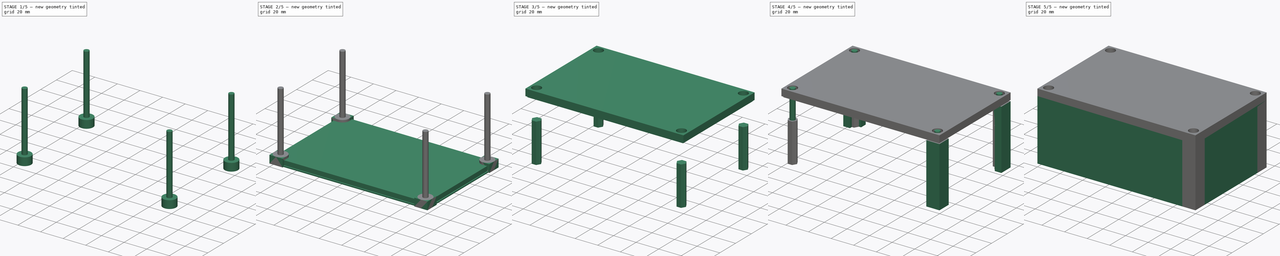
[diagram: build sequence overview — one tinted view per stage of 5, left to right]
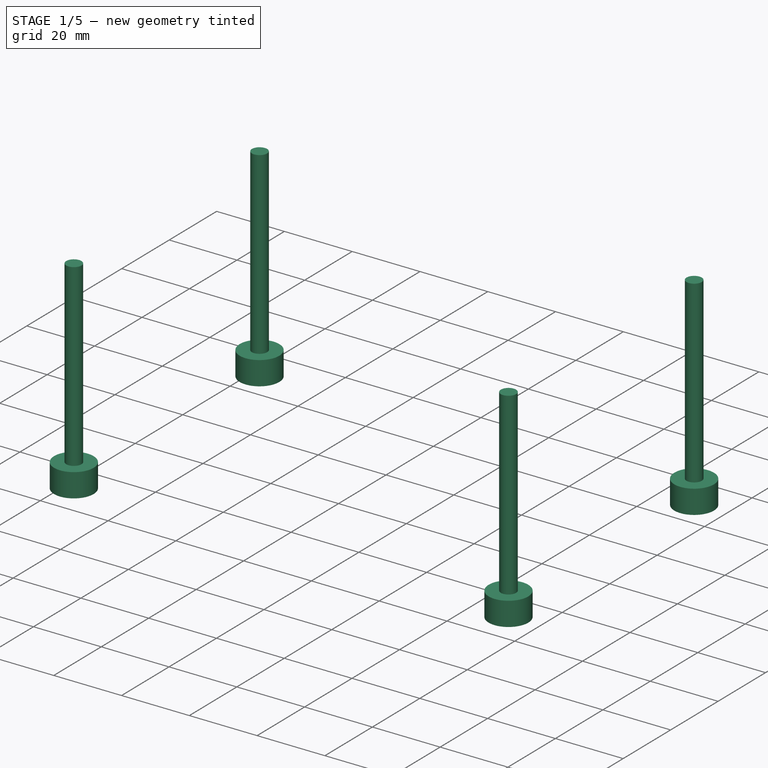
[diagram: stage 1 of 5 — iso view after this stage's code; geometry added in this stage tinted green]
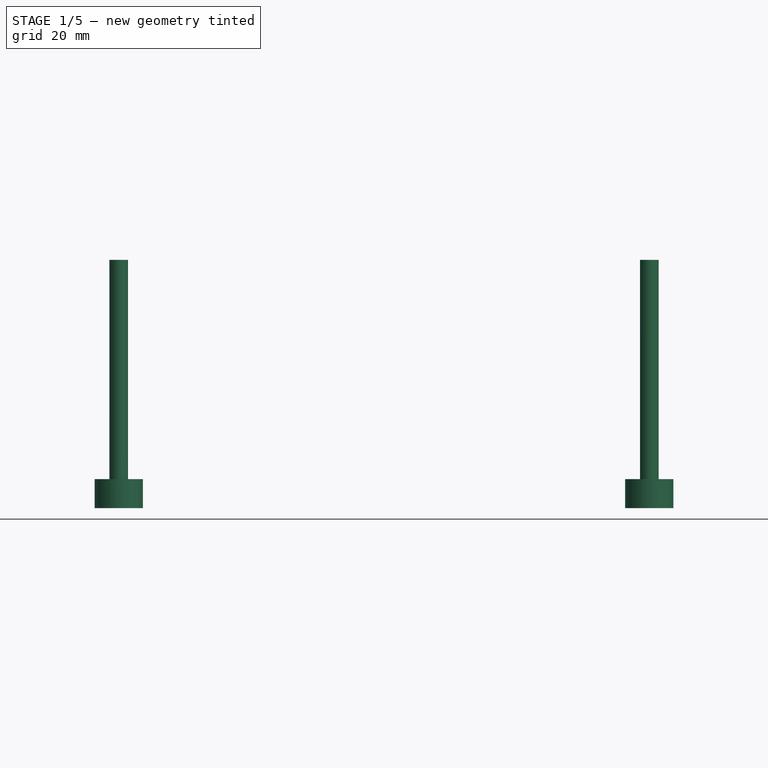
[diagram: stage 1 of 5 — front view after this stage's code; geometry added in this stage tinted green]
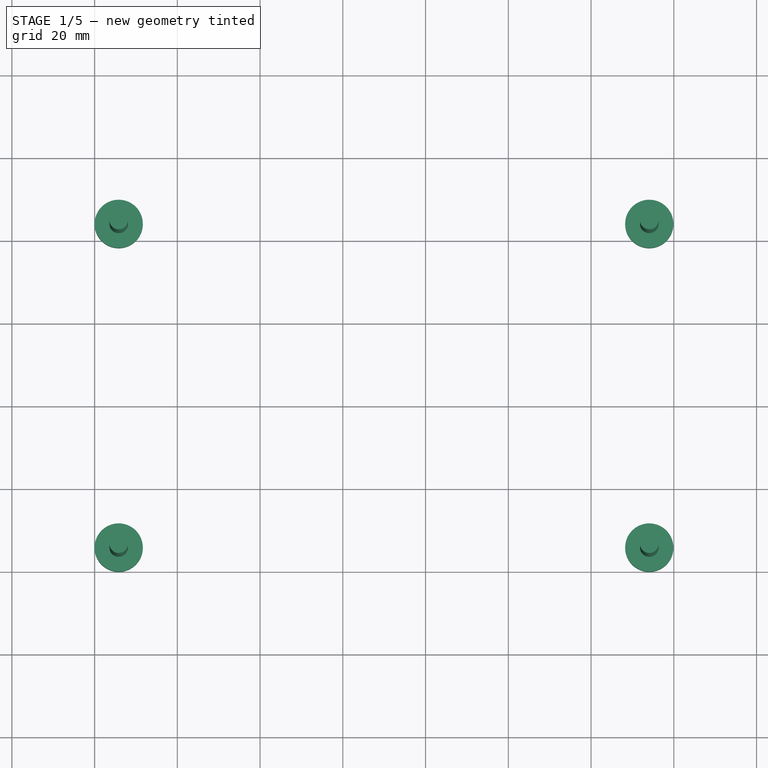
[diagram: stage 1 of 5 — top view after this stage's code; geometry added in this stage tinted green]
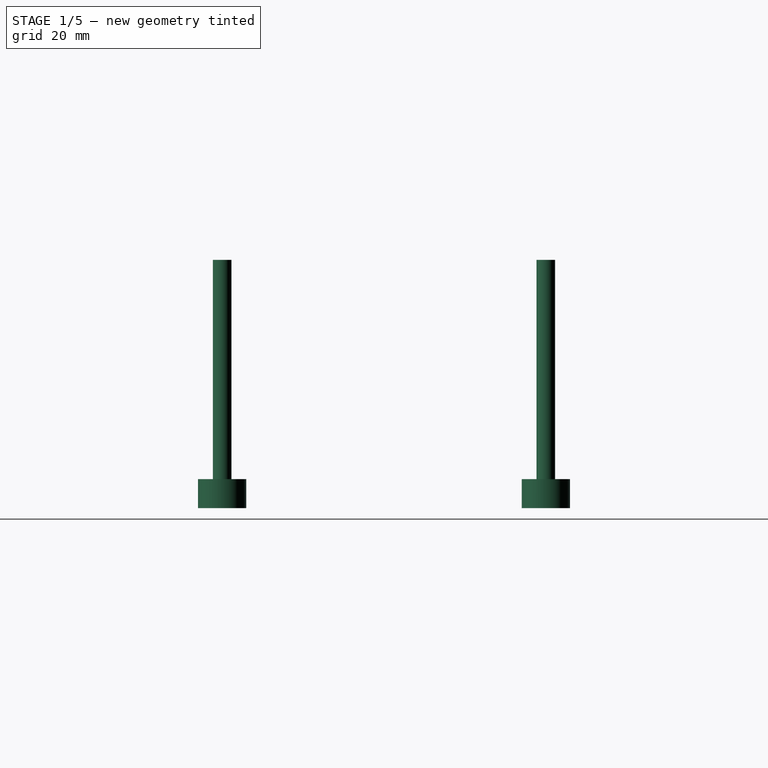
[diagram: stage 1 of 5 — right view after this stage's code; geometry added in this stage tinted green]
FCSTD DOCUMENT  (FreeCAD 1.0R1.0.0)
Label: GenericBox01
License: All rights reserved
LicenseURL: http://en.wikipedia.org/wiki/All_rights_reserved
objects: Part::Box×24, Part::Cylinder×20, Part::Cut×15, Part::MultiFuse×11, Sketcher::SketchObject×4, Part::Extrusion×4, Spreadsheet::Sheet×1
note: 82 computed .brp shape members not serialized (recipe doc carries the construction recipe); baked Part::Feature solids carry a one-line shape summary decoded from their .brp

FEATURE [Part::Cylinder] Cylinder008
  Angle = 360
  AttacherType = Attacher::AttachEngine3D
  FirstAngle = 0
  Height = 7
  Placement = pos=(5.83,5.83,0) rot=(0,0,1;0rad)
  Radius = 5.83
  SecondAngle = 0
  expr: .Placement.Base.x = <<GenericScrewedUtilityBox>>.wall_width + <<GenericScrewedUtilityBox>>.m4_od / 2
  expr: .Placement.Base.y = <<GenericScrewedUtilityBox>>.wall_width + <<GenericScrewedUtilityBox>>.m4_od / 2
  expr: Height = <<GenericScrewedUtilityBox>>.upper_split_height + <<GenericScrewedUtilityBox>>.overlap_region
  expr: Radius = <<GenericScrewedUtilityBox>>.m4_od / 2 + <<GenericScrewedUtilityBox>>.wall_width
FEATURE [Part::Cylinder] Cylinder009
  Angle = 360
  AttacherType = Attacher::AttachEngine3D
  FirstAngle = 0
  Height = 7
  Placement = pos=(134.075,5.83,0) rot=(0,0,1;0rad)
  Radius = 5.83
  SecondAngle = 0
  expr: .Placement.Base.x = <<GenericScrewedUtilityBox>>.outer_width - <<GenericScrewedUtilityBox>>.wall_width - <<GenericScrewedUtilityBox>>.m4_od / 2
  expr: .Placement.Base.y = <<GenericScrewedUtilityBox>>.wall_width + <<GenericScrewedUtilityBox>>.m4_od / 2
  expr: Height = <<GenericScrewedUtilityBox>>.upper_split_height + <<GenericScrewedUtilityBox>>.overlap_region
  expr: Radius = <<GenericScrewedUtilityBox>>.m4_od / 2 + <<GenericScrewedUtilityBox>>.wall_width
FEATURE [Part::Cylinder] Cylinder010
  Angle = 360
  AttacherType = Attacher::AttachEngine3D
  FirstAngle = 0
  Height = 7
  Placement = pos=(5.83,84.0749,0) rot=(0,0,1;0rad)
  Radius = 5.83
  SecondAngle = 0
  expr: .Placement.Base.x = <<GenericScrewedUtilityBox>>.wall_width + <<GenericScrewedUtilityBox>>.m4_od / 2
  expr: .Placement.Base.y = <<GenericScrewedUtilityBox>>.outer_length - <<GenericScrewedUtilityBox>>.wall_width - <<GenericScrewedUtilityBox>>.m4_od / 2
  expr: Height = <<GenericScrewedUtilityBox>>.upper_split_height + <<GenericScrewedUtilityBox>>.overlap_region
  expr: Radius = <<GenericScrewedUtilityBox>>.m4_od / 2 + <<GenericScrewedUtilityBox>>.wall_width
FEATURE [Part::Cylinder] Cylinder011
  Angle = 360
  AttacherType = Attacher::AttachEngine3D
  FirstAngle = 0
  Height = 7
  Placement = pos=(134.075,84.0749,0) rot=(0,0,1;0rad)
  Radius = 5.83
  SecondAngle = 0
  expr: .Placement.Base.x = <<GenericScrewedUtilityBox>>.outer_width - <<GenericScrewedUtilityBox>>.wall_width - <<GenericScrewedUtilityBox>>.m4_od / 2
  expr: .Placement.Base.y = <<GenericScrewedUtilityBox>>.outer_length - <<GenericScrewedUtilityBox>>.wall_width - <<GenericScrewedUtilityBox>>.m4_od / 2
  expr: Height = <<GenericScrewedUtilityBox>>.upper_split_height + <<GenericScrewedUtilityBox>>.overlap_region
  expr: Radius = <<GenericScrewedUtilityBox>>.m4_od / 2 + <<GenericScrewedUtilityBox>>.wall_width
FEATURE [Part::Cylinder] Cylinder012
  Angle = 360
  AttacherType = Attacher::AttachEngine3D
  FirstAngle = 0
  Height = 60
  Placement = pos=(5.83,5.83,0) rot=(0,0,1;0rad)
  Radius = 2.25
  SecondAngle = 0
  expr: .Placement.Base.x = <<GenericScrewedUtilityBox>>.wall_width + <<GenericScrewedUtilityBox>>.m4_od / 2
  expr: .Placement.Base.y = <<GenericScrewedUtilityBox>>.wall_width + <<GenericScrewedUtilityBox>>.m4_od / 2
  expr: Height = <<GenericScrewedUtilityBox>>.outer_height
  expr: Radius = <<GenericScrewedUtilityBox>>.m4_throughhole / 2
FEATURE [Part::Cylinder] Cylinder013
  Angle = 360
  AttacherType = Attacher::AttachEngine3D
  FirstAngle = 0
  Height = 60
  Placement = pos=(134.075,5.83,0) rot=(0,0,1;0rad)
  Radius = 2.25
  SecondAngle = 0
  expr: .Placement.Base.x = <<GenericScrewedUtilityBox>>.outer_width - <<GenericScrewedUtilityBox>>.wall_width - <<GenericScrewedUtilityBox>>.m4_od / 2
  expr: .Placement.Base.y = <<GenericScrewedUtilityBox>>.wall_width + <<GenericScrewedUtilityBox>>.m4_od / 2
  expr: Height = <<GenericScrewedUtilityBox>>.outer_height
  expr: Radius = <<GenericScrewedUtilityBox>>.m4_throughhole / 2
FEATURE [Part::Cylinder] Cylinder014
  Angle = 360
  AttacherType = Attacher::AttachEngine3D
  FirstAngle = 0
  Height = 60
  Placement = pos=(5.83,84.0749,0) rot=(0,0,1;0rad)
  Radius = 2.25
  SecondAngle = 0
  expr: .Placement.Base.x = <<GenericScrewedUtilityBox>>.wall_width + <<GenericScrewedUtilityBox>>.m4_od / 2
  expr: .Placement.Base.y = <<GenericScrewedUtilityBox>>.outer_length - <<GenericScrewedUtilityBox>>.wall_width - <<GenericScrewedUtilityBox>>.m4_od / 2
  expr: Height = <<GenericScrewedUtilityBox>>.outer_height
  expr: Radius = <<GenericScrewedUtilityBox>>.m4_throughhole / 2
FEATURE [Part::Cylinder] Cylinder015
  Angle = 360
  AttacherType = Attacher::AttachEngine3D
  FirstAngle = 0
  Height = 60
  Placement = pos=(134.075,84.0749,0) rot=(0,0,1;0rad)
  Radius = 2.25
  SecondAngle = 0
  expr: .Placement.Base.x = <<GenericScrewedUtilityBox>>.outer_width - <<GenericScrewedUtilityBox>>.wall_width - <<GenericScrewedUtilityBox>>.m4_od / 2
  expr: .Placement.Base.y = <<GenericScrewedUtilityBox>>.outer_length - <<GenericScrewedUtilityBox>>.wall_width - <<GenericScrewedUtilityBox>>.m4_od / 2
  expr: Height = <<GenericScrewedUtilityBox>>.outer_height
  expr: Radius = <<GenericScrewedUtilityBox>>.m4_throughhole / 2
FEATURE [Part::MultiFuse] Fusion008  label="M4Through002"
  Shapes = -> [Cylinder015,Cylinder012,Cylinder013,Cylinder014]
FEATURE [Part::Cylinder] Cylinder016
  Angle = 360
  AttacherType = Attacher::AttachEngine3D
  FirstAngle = 0
  Height = 4.3
  Placement = pos=(5.83,5.83,0) rot=(0,0,1;0rad)
  Radius = 4
  SecondAngle = 0
  expr: .Placement.Base.x = <<GenericScrewedUtilityBox>>.wall_width + <<GenericScrewedUtilityBox>>.m4_od / 2
  expr: .Placement.Base.y = <<GenericScrewedUtilityBox>>.wall_width + <<GenericScrewedUtilityBox>>.m4_od / 2
  expr: Height = <<GenericScrewedUtilityBox>>.m4_head_height
  expr: Radius = <<GenericScrewedUtilityBox>>.m4_head_dia / 2
FEATURE [Part::Cylinder] Cylinder017
  Angle = 360
  AttacherType = Attacher::AttachEngine3D
  FirstAngle = 0
  Height = 4.3
  Placement = pos=(134.075,5.83,0) rot=(0,0,1;0rad)
  Radius = 4
  SecondAngle = 0
  expr: .Placement.Base.x = <<GenericScrewedUtilityBox>>.outer_width - <<GenericScrewedUtilityBox>>.wall_width - <<GenericScrewedUtilityBox>>.m4_od / 2
  expr: .Placement.Base.y = <<GenericScrewedUtilityBox>>.wall_width + <<GenericScrewedUtilityBox>>.m4_od / 2
  expr: Height = <<GenericScrewedUtilityBox>>.m4_head_height
  expr: Radius = <<GenericScrewedUtilityBox>>.m4_head_dia / 2
FEATURE [Part::Cylinder] Cylinder018
  Angle = 360
  AttacherType = Attacher::AttachEngine3D
  FirstAngle = 0
  Height = 4.3
  Placement = pos=(5.83,84.0749,0) rot=(0,0,1;0rad)
  Radius = 4
  SecondAngle = 0
  expr: .Placement.Base.x = <<GenericScrewedUtilityBox>>.wall_width + <<GenericScrewedUtilityBox>>.m4_od / 2
  expr: .Placement.Base.y = <<GenericScrewedUtilityBox>>.outer_length - <<GenericScrewedUtilityBox>>.wall_width - <<GenericScrewedUtilityBox>>.m4_od / 2
  expr: Height = <<GenericScrewedUtilityBox>>.m4_head_height
  expr: Radius = <<GenericScrewedUtilityBox>>.m4_head_dia / 2
FEATURE [Part::Cylinder] Cylinder019
  Angle = 360
  AttacherType = Attacher::AttachEngine3D
  FirstAngle = 0
  Height = 4.3
  Placement = pos=(134.075,84.0749,0) rot=(0,0,1;0rad)
  Radius = 4
  SecondAngle = 0
  expr: .Placement.Base.x = <<GenericScrewedUtilityBox>>.outer_width - <<GenericScrewedUtilityBox>>.wall_width - <<GenericScrewedUtilityBox>>.m4_od / 2
  expr: .Placement.Base.y = <<GenericScrewedUtilityBox>>.outer_length - <<GenericScrewedUtilityBox>>.wall_width - <<GenericScrewedUtilityBox>>.m4_od / 2
  expr: Height = <<GenericScrewedUtilityBox>>.m4_head_height
  expr: Radius = <<GenericScrewedUtilityBox>>.m4_head_dia / 2
FEATURE [Part::MultiFuse] Fusion009  label="M4Heads"
  Placement = pos=(0,0,2.7) rot=(0,0,1;0rad)
  Shapes = -> [Cylinder019,Cylinder016,Cylinder017,Cylinder018]
  expr: .Placement.Base.z = <<GenericScrewedUtilityBox>>.upper_split_height - <<GenericScrewedUtilityBox>>.m4_head_height + <<GenericScrewedUtilityBox>>.overlap_region
FEATURE [Part::MultiFuse] Fusion010
  Shapes = -> [Fusion009,Fusion008]
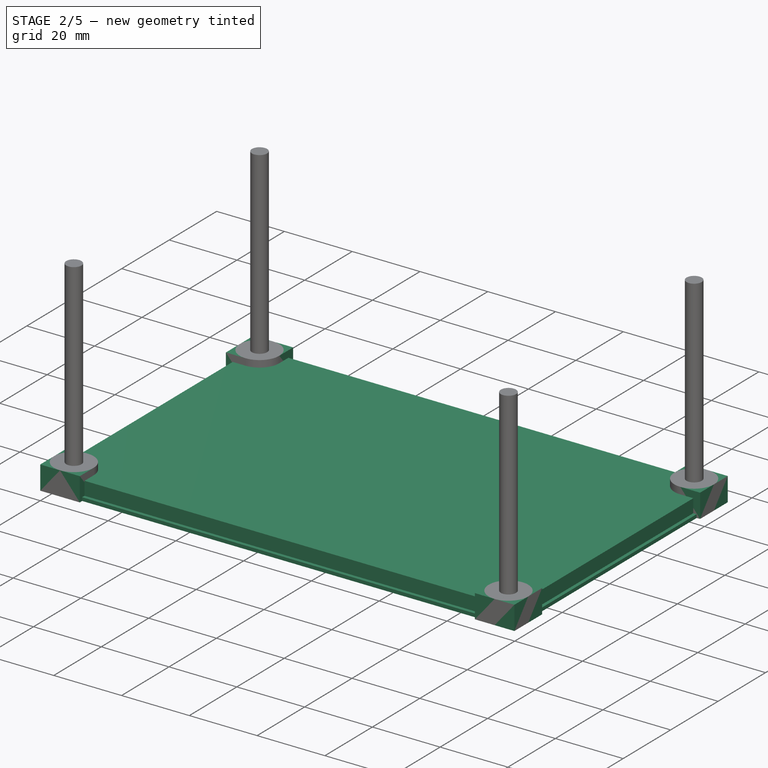
[diagram: stage 2 of 5 — iso view after this stage's code; geometry added in this stage tinted green]
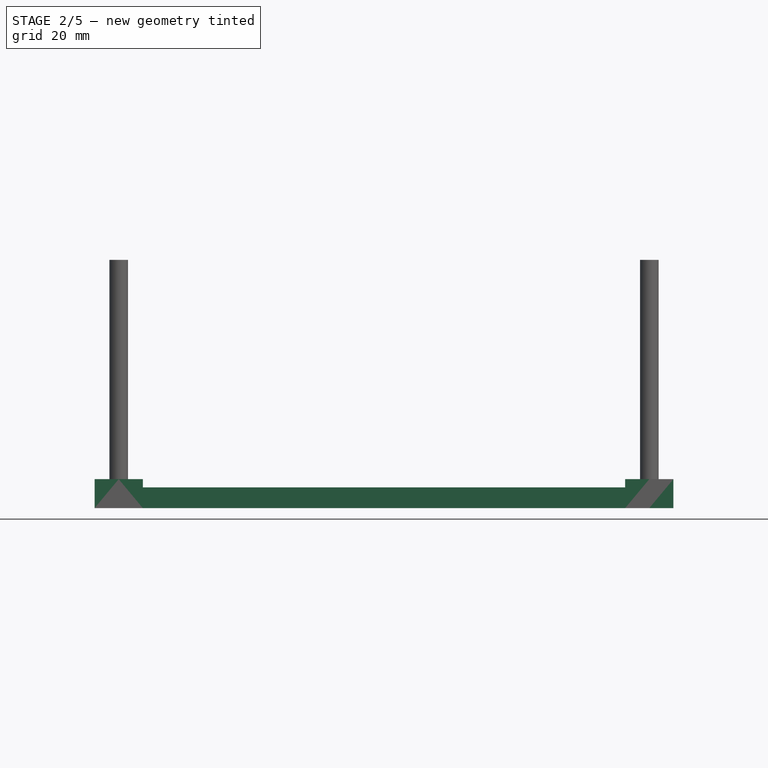
[diagram: stage 2 of 5 — front view after this stage's code; geometry added in this stage tinted green]
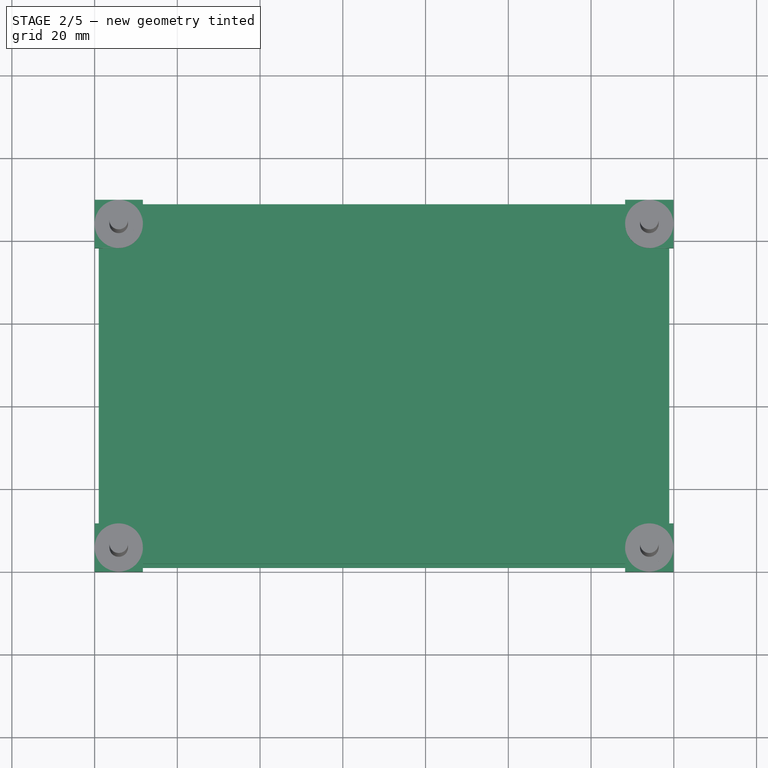
[diagram: stage 2 of 5 — top view after this stage's code; geometry added in this stage tinted green]
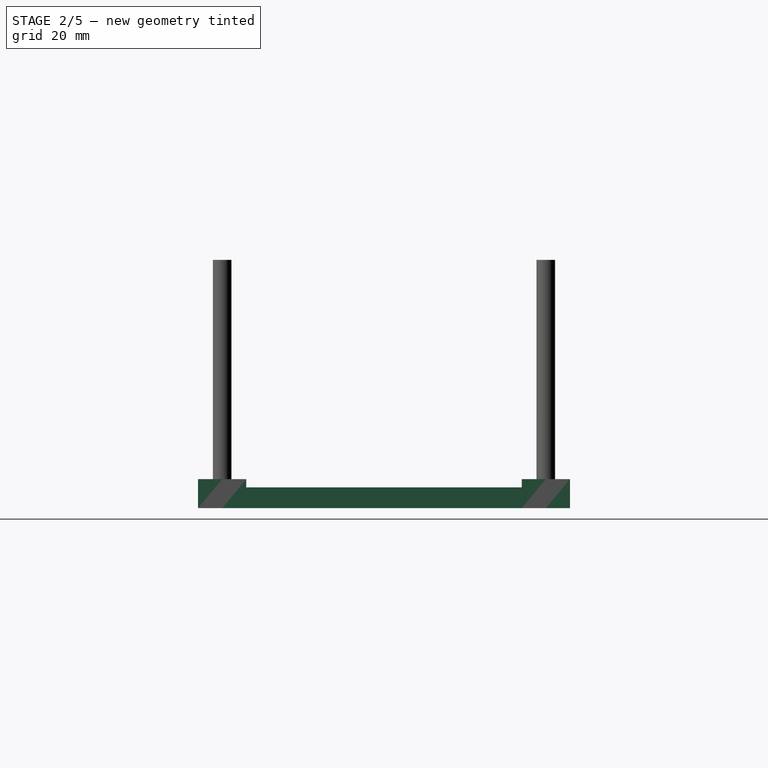
[diagram: stage 2 of 5 — right view after this stage's code; geometry added in this stage tinted green]
FEATURE [Part::Box] Box012  label="Cube009"
  AttacherType = Attacher::AttachEngine3D
  Height = 1
  Length = 137.905
  Placement = pos=(1,1,0) rot=(0,0,1;0rad)
  Width = 87.9049
  expr: .Placement.Base.x = <<GenericScrewedUtilityBox>>.wall_width / 2
  expr: .Placement.Base.y = <<GenericScrewedUtilityBox>>.wall_width / 2
  expr: Height = <<GenericScrewedUtilityBox>>.overlap_region
  expr: Length = <<GenericScrewedUtilityBox>>.outer_width - <<GenericScrewedUtilityBox>>.wall_width
  expr: Width = <<GenericScrewedUtilityBox>>.outer_length - <<GenericScrewedUtilityBox>>.wall_width
FEATURE [Part::Box] Box013  label="InnerArea002"
  AttacherType = Attacher::AttachEngine3D
  Height = 5
  Length = 135.905
  Placement = pos=(2,2,0) rot=(0,0,1;0rad)
  Width = 85.9049
  expr: .Placement.Base.x = <<GenericScrewedUtilityBox>>.wall_width
  expr: .Placement.Base.y = <<GenericScrewedUtilityBox>>.wall_width
  expr: Height = <<GenericScrewedUtilityBox>>.upper_split_height + <<GenericScrewedUtilityBox>>.overlap_region - <<GenericScrewedUtilityBox>>.wall_width
  expr: Length = <<GenericScrewedUtilityBox>>.outer_width - 2 * <<GenericScrewedUtilityBox>>.wall_width
  expr: Width = <<GenericScrewedUtilityBox>>.outer_length - 2 * <<GenericScrewedUtilityBox>>.wall_width
FEATURE [Part::Box] Box014  label="Cube010"
  AttacherType = Attacher::AttachEngine3D
  Height = 7
  Length = 11.66
  Width = 11.66
  expr: Height = <<GenericScrewedUtilityBox>>.upper_split_height + <<GenericScrewedUtilityBox>>.overlap_region
  expr: Length = <<GenericScrewedUtilityBox>>.m4_od + 2 * <<GenericScrewedUtilityBox>>.wall_width
  expr: Width = <<GenericScrewedUtilityBox>>.m4_od + 2 * <<GenericScrewedUtilityBox>>.wall_width
FEATURE [Part::Box] Box015  label="Cube011"
  AttacherType = Attacher::AttachEngine3D
  Height = 7
  Length = 5.83
  Placement = pos=(5.83,5.83,0) rot=(0,0,1;0rad)
  Width = 5.83
  expr: .Placement.Base.x = (<<GenericScrewedUtilityBox>>.m4_od + 2 * <<GenericScrewedUtilityBox>>.wall_width) / 2
  expr: .Placement.Base.y = (<<GenericScrewedUtilityBox>>.m4_od + 2 * <<GenericScrewedUtilityBox>>.wall_width) / 2
  expr: Height = <<GenericScrewedUtilityBox>>.upper_split_height + <<GenericScrewedUtilityBox>>.overlap_region
  expr: Length = (<<GenericScrewedUtilityBox>>.m4_od + 2 * <<GenericScrewedUtilityBox>>.wall_width) / 2
  expr: Width = (<<GenericScrewedUtilityBox>>.m4_od + 2 * <<GenericScrewedUtilityBox>>.wall_width) / 2
FEATURE [Part::Box] Box016  label="Cube012"
  AttacherType = Attacher::AttachEngine3D
  Height = 7
  Length = 11.66
  Width = 11.66
  expr: Height = <<GenericScrewedUtilityBox>>.upper_split_height + <<GenericScrewedUtilityBox>>.overlap_region
  expr: Length = <<GenericScrewedUtilityBox>>.m4_od + 2 * <<GenericScrewedUtilityBox>>.wall_width
  expr: Width = <<GenericScrewedUtilityBox>>.m4_od + 2 * <<GenericScrewedUtilityBox>>.wall_width
FEATURE [Part::Box] Box017  label="Cube013"
  AttacherType = Attacher::AttachEngine3D
  Height = 7
  Length = 5.83
  Placement = pos=(5.83,5.83,0) rot=(0,0,1;0rad)
  Width = 5.83
  expr: .Placement.Base.x = (<<GenericScrewedUtilityBox>>.m4_od + 2 * <<GenericScrewedUtilityBox>>.wall_width) / 2
  expr: .Placement.Base.y = (<<GenericScrewedUtilityBox>>.m4_od + 2 * <<GenericScrewedUtilityBox>>.wall_width) / 2
  expr: Height = <<GenericScrewedUtilityBox>>.upper_split_height + <<GenericScrewedUtilityBox>>.overlap_region
  expr: Length = (<<GenericScrewedUtilityBox>>.m4_od + 2 * <<GenericScrewedUtilityBox>>.wall_width) / 2
  expr: Width = (<<GenericScrewedUtilityBox>>.m4_od + 2 * <<GenericScrewedUtilityBox>>.wall_width) / 2
FEATURE [Part::Box] Box018  label="Cube014"
  AttacherType = Attacher::AttachEngine3D
  Height = 7
  Length = 11.66
  Width = 11.66
  expr: Height = <<GenericScrewedUtilityBox>>.upper_split_height + <<GenericScrewedUtilityBox>>.overlap_region
  expr: Length = <<GenericScrewedUtilityBox>>.m4_od + 2 * <<GenericScrewedUtilityBox>>.wall_width
  expr: Width = <<GenericScrewedUtilityBox>>.m4_od + 2 * <<GenericScrewedUtilityBox>>.wall_width
FEATURE [Part::Box] Box019  label="Cube015"
  AttacherType = Attacher::AttachEngine3D
  Height = 7
  Length = 5.83
  Placement = pos=(5.83,5.83,0) rot=(0,0,1;0rad)
  Width = 5.83
  expr: .Placement.Base.x = (<<GenericScrewedUtilityBox>>.m4_od + 2 * <<GenericScrewedUtilityBox>>.wall_width) / 2
  expr: .Placement.Base.y = (<<GenericScrewedUtilityBox>>.m4_od + 2 * <<GenericScrewedUtilityBox>>.wall_width) / 2
  expr: Height = <<GenericScrewedUtilityBox>>.upper_split_height + <<GenericScrewedUtilityBox>>.overlap_region
  expr: Length = (<<GenericScrewedUtilityBox>>.m4_od + 2 * <<GenericScrewedUtilityBox>>.wall_width) / 2
  expr: Width = (<<GenericScrewedUtilityBox>>.m4_od + 2 * <<GenericScrewedUtilityBox>>.wall_width) / 2
FEATURE [Part::Box] Box020  label="Cube016"
  AttacherType = Attacher::AttachEngine3D
  Height = 7
  Length = 11.66
  Width = 11.66
  expr: Height = <<GenericScrewedUtilityBox>>.upper_split_height + <<GenericScrewedUtilityBox>>.overlap_region
  expr: Length = <<GenericScrewedUtilityBox>>.m4_od + 2 * <<GenericScrewedUtilityBox>>.wall_width
  expr: Width = <<GenericScrewedUtilityBox>>.m4_od + 2 * <<GenericScrewedUtilityBox>>.wall_width
FEATURE [Part::Box] Box021  label="Cube017"
  AttacherType = Attacher::AttachEngine3D
  Height = 7
  Length = 5.83
  Placement = pos=(5.83,5.83,0) rot=(0,0,1;0rad)
  Width = 5.83
  expr: .Placement.Base.x = (<<GenericScrewedUtilityBox>>.m4_od + 2 * <<GenericScrewedUtilityBox>>.wall_width) / 2
  expr: .Placement.Base.y = (<<GenericScrewedUtilityBox>>.m4_od + 2 * <<GenericScrewedUtilityBox>>.wall_width) / 2
  expr: Height = <<GenericScrewedUtilityBox>>.upper_split_height + <<GenericScrewedUtilityBox>>.overlap_region
  expr: Length = (<<GenericScrewedUtilityBox>>.m4_od + 2 * <<GenericScrewedUtilityBox>>.wall_width) / 2
  expr: Width = (<<GenericScrewedUtilityBox>>.m4_od + 2 * <<GenericScrewedUtilityBox>>.wall_width) / 2
FEATURE [Part::Cut] Cut008
  Base = -> Box014
  Tool = -> Box015
FEATURE [Part::Cut] Cut009
  Base = -> Box016
  Placement = pos=(139.905,0,0) rot=(0,0,1;1.5708rad)
  Tool = -> Box017
  expr: .Placement.Base.x = <<GenericScrewedUtilityBox>>.outer_width
FEATURE [Part::Cut] Cut010
  Base = -> Box018
  Placement = pos=(139.905,89.9049,0) rot=(0,0,1;3.14159rad)
  Tool = -> Box019
  expr: .Placement.Base.x = <<GenericScrewedUtilityBox>>.outer_width
  expr: .Placement.Base.y = <<GenericScrewedUtilityBox>>.outer_length
FEATURE [Part::Cut] Cut011
  Base = -> Box020
  Placement = pos=(0,89.9049,0) rot=(0,0,1;4.71239rad)
  Tool = -> Box021
  expr: .Placement.Base.y = <<GenericScrewedUtilityBox>>.outer_length
FEATURE [Part::MultiFuse] Fusion006  label="ScrewHousing002"
  Shapes = -> [Cut011,Cut008,Cut009,Cut010,Cylinder011,Cylinder010,Cylinder009,Cylinder008]
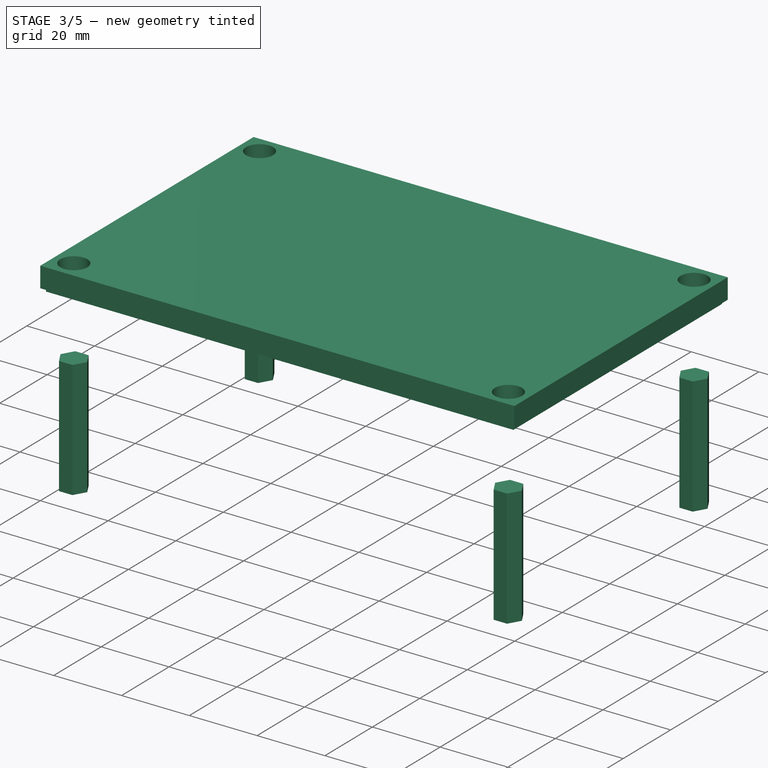
[diagram: stage 3 of 5 — iso view after this stage's code; geometry added in this stage tinted green]
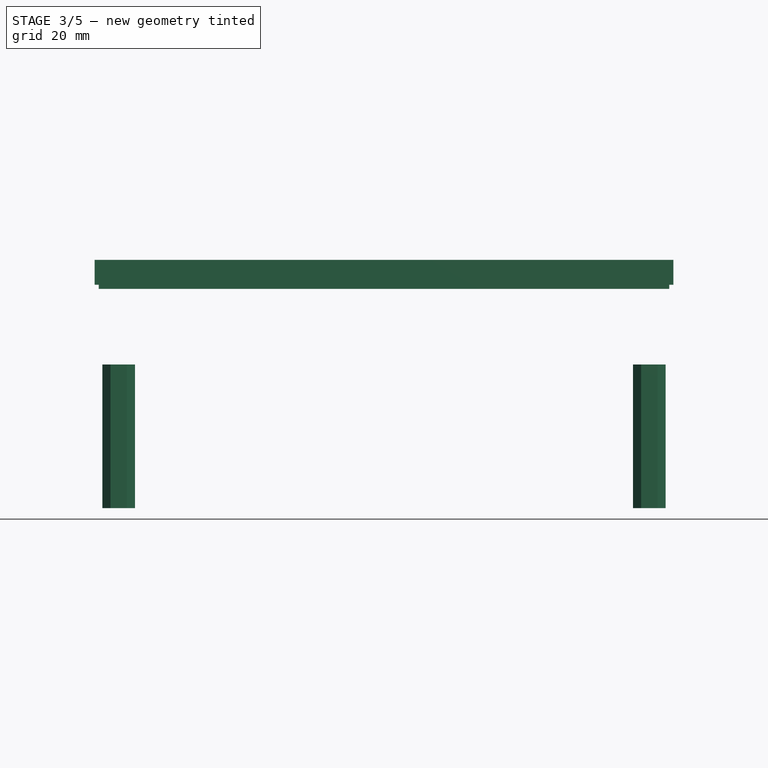
[diagram: stage 3 of 5 — front view after this stage's code; geometry added in this stage tinted green]
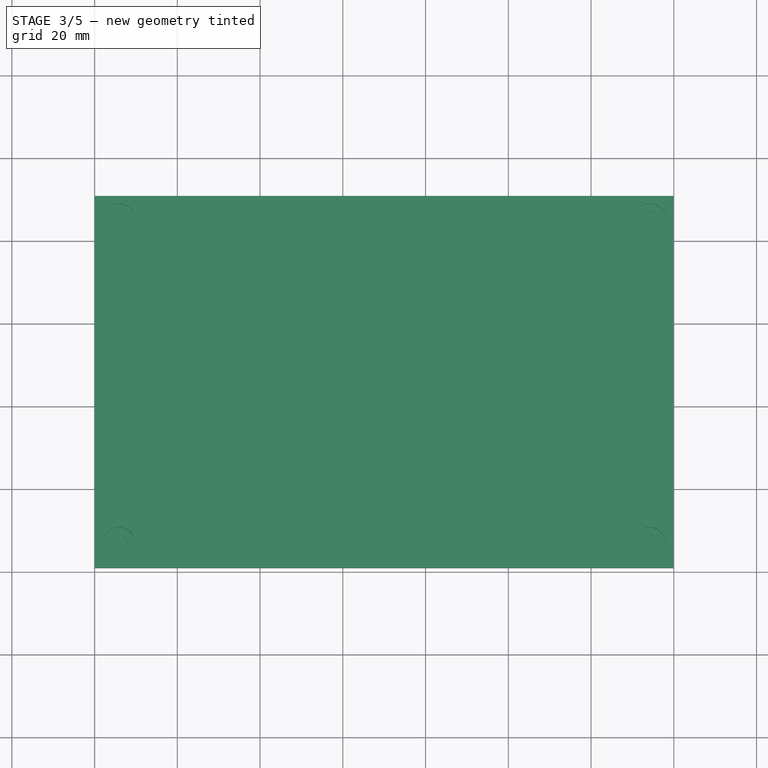
[diagram: stage 3 of 5 — top view after this stage's code; geometry added in this stage tinted green]
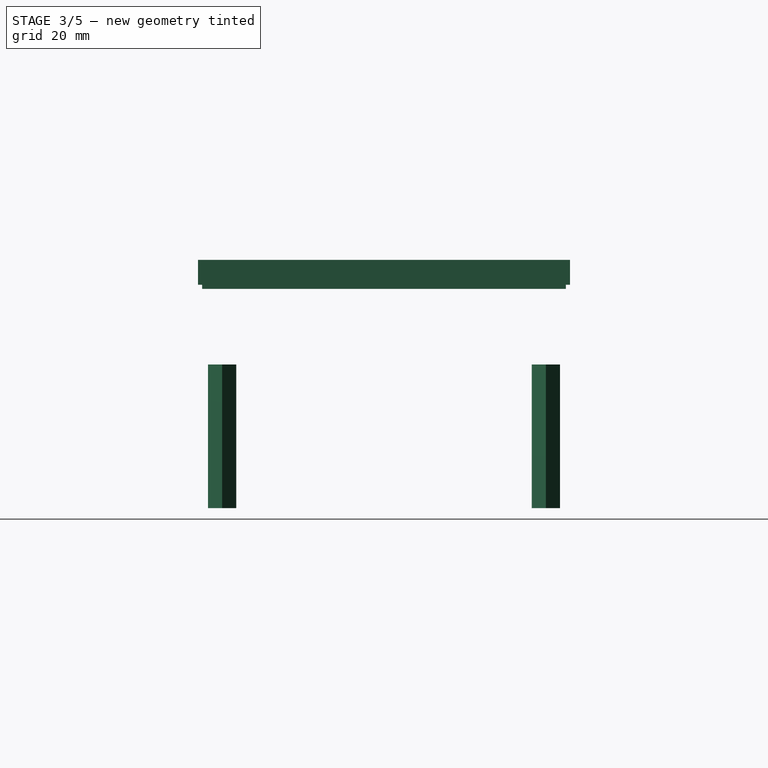
[diagram: stage 3 of 5 — right view after this stage's code; geometry added in this stage tinted green]
FEATURE [Sketcher::SketchObject] Sketch
  ArcFitTolerance = 0
  FullyConstrained = true
  MakeInternals = false
  sketch-geometry (7):
    g0: LineSegment StartX=-3.95 StartY=0 StartZ=0 EndX=-1.975 EndY=-3.4208 EndZ=0
    g1: LineSegment StartX=-1.975 StartY=-3.4208 StartZ=0 EndX=1.975 EndY=-3.4208 EndZ=0
    g2: LineSegment StartX=1.975 StartY=-3.4208 StartZ=0 EndX=3.95 EndY=0 EndZ=0
    g3: LineSegment StartX=3.95 StartY=0 StartZ=0 EndX=1.975 EndY=3.4208 EndZ=0
    g4: LineSegment StartX=1.975 StartY=3.4208 StartZ=0 EndX=-1.975 EndY=3.4208 EndZ=0
    g5: LineSegment StartX=-1.975 StartY=3.4208 StartZ=0 EndX=-3.95 EndY=0 EndZ=0
    g6: Circle [constr] CenterX=0 CenterY=0 CenterZ=0 NormalX=0 NormalY=0 NormalZ=1 AngleXU=0 Radius=3.95
  constraints (16):
    c: Coincident(g0,g1)
    c: Coincident(g1,g2)
    c: Coincident(g2,g3)
    c: Coincident(g3,g4)
    c: Coincident(g4,g5)
    c: Coincident(g5,g0)
    c: Equal(g0, g1-g5) x5
    c: PointOnObject(g0,g6)
    c: PointOnObject(g1,g6)
    c: PointOnObject(g2,g6)
    c: PointOnObject(g3,g6)
    c: PointOnObject(g4,g6)
    c: PointOnObject(g5,g6)
    c: Coincident(g6,g-1)
    c: PointOnObject(g5,g-1)
    c: DistanceX(g0,g2) = 7.9
FEATURE [Part::Extrusion] Extrude  label="DIN934_M3"
  Base = -> Sketch
  Dir = (0,0,1)
  DirMode = 2
  FaceMakerClass = Part::FaceMakerBullseye
  FaceMakerMode = 3
  LengthFwd = 34.7
  LengthRev = 0
  Placement = pos=(5.83,5.83,0) rot=(0,0,1;0rad)
  Solid = true
  Symmetric = false
  expr: .Placement.Base.x = <<GenericScrewedUtilityBox>>.wall_width + <<GenericScrewedUtilityBox>>.m4_od / 2
  expr: .Placement.Base.y = <<GenericScrewedUtilityBox>>.wall_width + <<GenericScrewedUtilityBox>>.m4_od / 2
  expr: LengthFwd = <<GenericScrewedUtilityBox>>.outer_height - (<<GenericScrewedUtilityBox>>.screwlen - <<GenericScrewedUtilityBox>>.m4_nut_height) - <<GenericScrewedUtilityBox>>.m4_head_height
FEATURE [Sketcher::SketchObject] Sketch001
  ArcFitTolerance = 0
  FullyConstrained = true
  MakeInternals = false
  sketch-geometry (7):
    g0: LineSegment StartX=-3.95 StartY=0 StartZ=0 EndX=-1.975 EndY=-3.4208 EndZ=0
    g1: LineSegment StartX=-1.975 StartY=-3.4208 StartZ=0 EndX=1.975 EndY=-3.4208 EndZ=0
    g2: LineSegment StartX=1.975 StartY=-3.4208 StartZ=0 EndX=3.95 EndY=0 EndZ=0
    g3: LineSegment StartX=3.95 StartY=0 StartZ=0 EndX=1.975 EndY=3.4208 EndZ=0
    g4: LineSegment StartX=1.975 StartY=3.4208 StartZ=0 EndX=-1.975 EndY=3.4208 EndZ=0
    g5: LineSegment StartX=-1.975 StartY=3.4208 StartZ=0 EndX=-3.95 EndY=0 EndZ=0
    g6: Circle [constr] CenterX=0 CenterY=0 CenterZ=0 NormalX=0 NormalY=0 NormalZ=1 AngleXU=0 Radius=3.95
  constraints (16):
    c: Coincident(g0,g1)
    c: Coincident(g1,g2)
    c: Coincident(g2,g3)
    c: Coincident(g3,g4)
    c: Coincident(g4,g5)
    c: Coincident(g5,g0)
    c: Equal(g0, g1-g5) x5
    c: PointOnObject(g0,g6)
    c: PointOnObject(g1,g6)
    c: PointOnObject(g2,g6)
    c: PointOnObject(g3,g6)
    c: PointOnObject(g4,g6)
    c: PointOnObject(g5,g6)
    c: Coincident(g6,g-1)
    c: PointOnObject(g5,g-1)
    c: DistanceX(g0,g2) = 7.9
FEATURE [Part::Extrusion] Extrude001  label="DIN934_M004"
  Base = -> Sketch001
  Dir = (0,0,1)
  DirMode = 2
  FaceMakerClass = Part::FaceMakerBullseye
  FaceMakerMode = 3
  LengthFwd = 34.7
  LengthRev = 0
  Placement = pos=(134.075,5.83,0) rot=(0,0,1;0rad)
  Solid = true
  Symmetric = false
  expr: .Placement.Base.x = <<GenericScrewedUtilityBox>>.outer_width - <<GenericScrewedUtilityBox>>.wall_width - <<GenericScrewedUtilityBox>>.m4_od / 2
  expr: .Placement.Base.y = <<GenericScrewedUtilityBox>>.wall_width + <<GenericScrewedUtilityBox>>.m4_od / 2
  expr: LengthFwd = <<GenericScrewedUtilityBox>>.outer_height - (<<GenericScrewedUtilityBox>>.screwlen - <<GenericScrewedUtilityBox>>.m4_nut_height) - <<GenericScrewedUtilityBox>>.m4_head_height
FEATURE [Sketcher::SketchObject] Sketch002
  ArcFitTolerance = 0
  FullyConstrained = true
  MakeInternals = false
  sketch-geometry (7):
    g0: LineSegment StartX=-3.95 StartY=0 StartZ=0 EndX=-1.975 EndY=-3.4208 EndZ=0
    g1: LineSegment StartX=-1.975 StartY=-3.4208 StartZ=0 EndX=1.975 EndY=-3.4208 EndZ=0
    g2: LineSegment StartX=1.975 StartY=-3.4208 StartZ=0 EndX=3.95 EndY=0 EndZ=0
    g3: LineSegment StartX=3.95 StartY=0 StartZ=0 EndX=1.975 EndY=3.4208 EndZ=0
    g4: LineSegment StartX=1.975 StartY=3.4208 StartZ=0 EndX=-1.975 EndY=3.4208 EndZ=0
    g5: LineSegment StartX=-1.975 StartY=3.4208 StartZ=0 EndX=-3.95 EndY=0 EndZ=0
    g6: Circle [constr] CenterX=0 CenterY=0 CenterZ=0 NormalX=0 NormalY=0 NormalZ=1 AngleXU=0 Radius=3.95
  constraints (16):
    c: Coincident(g0,g1)
    c: Coincident(g1,g2)
    c: Coincident(g2,g3)
    c: Coincident(g3,g4)
    c: Coincident(g4,g5)
    c: Coincident(g5,g0)
    c: Equal(g0, g1-g5) x5
    c: PointOnObject(g0,g6)
    c: PointOnObject(g1,g6)
    c: PointOnObject(g2,g6)
    c: PointOnObject(g3,g6)
    c: PointOnObject(g4,g6)
    c: PointOnObject(g5,g6)
    c: Coincident(g6,g-1)
    c: PointOnObject(g5,g-1)
    c: DistanceX(g0,g2) = 7.9
FEATURE [Part::Extrusion] Extrude002  label="DIN934_M005"
  Base = -> Sketch002
  Dir = (0,0,1)
  DirMode = 2
  FaceMakerClass = Part::FaceMakerBullseye
  FaceMakerMode = 3
  LengthFwd = 34.7
  LengthRev = 0
  Placement = pos=(5.83,84.0749,0) rot=(0,0,1;0rad)
  Solid = true
  Symmetric = false
  expr: .Placement.Base.x = <<GenericScrewedUtilityBox>>.wall_width + <<GenericScrewedUtilityBox>>.m4_od / 2
  expr: .Placement.Base.y = <<GenericScrewedUtilityBox>>.outer_length - <<GenericScrewedUtilityBox>>.wall_width - <<GenericScrewedUtilityBox>>.m4_od / 2
  expr: LengthFwd = <<GenericScrewedUtilityBox>>.outer_height - (<<GenericScrewedUtilityBox>>.screwlen - <<GenericScrewedUtilityBox>>.m4_nut_height) - <<GenericScrewedUtilityBox>>.m4_head_height
FEATURE [Sketcher::SketchObject] Sketch003
  ArcFitTolerance = 0
  FullyConstrained = true
  MakeInternals = false
  sketch-geometry (7):
    g0: LineSegment StartX=-3.95 StartY=0 StartZ=0 EndX=-1.975 EndY=-3.4208 EndZ=0
    g1: LineSegment StartX=-1.975 StartY=-3.4208 StartZ=0 EndX=1.975 EndY=-3.4208 EndZ=0
    g2: LineSegment StartX=1.975 StartY=-3.4208 StartZ=0 EndX=3.95 EndY=0 EndZ=0
    g3: LineSegment StartX=3.95 StartY=0 StartZ=0 EndX=1.975 EndY=3.4208 EndZ=0
    g4: LineSegment StartX=1.975 StartY=3.4208 StartZ=0 EndX=-1.975 EndY=3.4208 EndZ=0
    g5: LineSegment StartX=-1.975 StartY=3.4208 StartZ=0 EndX=-3.95 EndY=0 EndZ=0
    g6: Circle [constr] CenterX=0 CenterY=0 CenterZ=0 NormalX=0 NormalY=0 NormalZ=1 AngleXU=0 Radius=3.95
  constraints (16):
    c: Coincident(g0,g1)
    c: Coincident(g1,g2)
    c: Coincident(g2,g3)
    c: Coincident(g3,g4)
    c: Coincident(g4,g5)
    c: Coincident(g5,g0)
    c: Equal(g0, g1-g5) x5
    c: PointOnObject(g0,g6)
    c: PointOnObject(g1,g6)
    c: PointOnObject(g2,g6)
    c: PointOnObject(g3,g6)
    c: PointOnObject(g4,g6)
    c: PointOnObject(g5,g6)
    c: Coincident(g6,g-1)
    c: PointOnObject(g5,g-1)
    c: DistanceX(g0,g2) = 7.9
FEATURE [Part::Extrusion] Extrude003  label="DIN934_M006"
  Base = -> Sketch003
  Dir = (0,0,1)
  DirMode = 2
  FaceMakerClass = Part::FaceMakerBullseye
  FaceMakerMode = 3
  LengthFwd = 34.7
  LengthRev = 0
  Placement = pos=(134.075,84.0749,0) rot=(0,0,1;0rad)
  Solid = true
  Symmetric = false
  expr: .Placement.Base.x = <<GenericScrewedUtilityBox>>.outer_width - <<GenericScrewedUtilityBox>>.wall_width - <<GenericScrewedUtilityBox>>.m4_od / 2
  expr: .Placement.Base.y = <<GenericScrewedUtilityBox>>.outer_length - <<GenericScrewedUtilityBox>>.wall_width - <<GenericScrewedUtilityBox>>.m4_od / 2
  expr: LengthFwd = <<GenericScrewedUtilityBox>>.outer_height - (<<GenericScrewedUtilityBox>>.screwlen - <<GenericScrewedUtilityBox>>.m4_nut_height) - <<GenericScrewedUtilityBox>>.m4_head_height
FEATURE [Part::MultiFuse] Fusion002
  Shapes = -> [Extrude,Extrude001,Extrude002,Extrude003]
FEATURE [Part::Box] Box011  label="Cube008"
  AttacherType = Attacher::AttachEngine3D
  Height = 6
  Length = 139.905
  Placement = pos=(0,0,1) rot=(0,0,1;0rad)
  Width = 89.9049
  expr: .Placement.Base.z = <<GenericScrewedUtilityBox>>.overlap_region
  expr: Height = <<GenericScrewedUtilityBox>>.upper_split_height
  expr: Length = <<GenericScrewedUtilityBox>>.outer_width
  expr: Width = <<GenericScrewedUtilityBox>>.outer_length
FEATURE [Part::MultiFuse] Fusion005
  Shapes = -> [Box011,Box012]
FEATURE [Part::Cut] Cut007
  Base = -> Fusion005
  Tool = -> Box013
FEATURE [Part::Box] Box022  label="Cube018"
  AttacherType = Attacher::AttachEngine3D
  Height = 1
  Length = 139.905
  Width = 89.9049
  expr: Height = <<GenericScrewedUtilityBox>>.overlap_region
  expr: Length = <<GenericScrewedUtilityBox>>.outer_width
  expr: Width = <<GenericScrewedUtilityBox>>.outer_length
FEATURE [Part::Box] Box023  label="Cube019"
  AttacherType = Attacher::AttachEngine3D
  Height = 1
  Length = 137.905
  Placement = pos=(1,1,0) rot=(0,0,1;0rad)
  Width = 87.9049
  expr: .Placement.Base.x = <<GenericScrewedUtilityBox>>.wall_width / 2
  expr: .Placement.Base.y = <<GenericScrewedUtilityBox>>.wall_width / 2
  expr: Height = <<GenericScrewedUtilityBox>>.overlap_region
  expr: Length = <<GenericScrewedUtilityBox>>.outer_width - <<GenericScrewedUtilityBox>>.wall_width
  expr: Width = <<GenericScrewedUtilityBox>>.outer_length - <<GenericScrewedUtilityBox>>.wall_width
FEATURE [Part::Cut] Cut012
  Base = -> Box022
  Tool = -> Box023
FEATURE [Part::MultiFuse] Fusion007
  Shapes = -> [Fusion006,Cut007]
FEATURE [Part::Cut] Cut013
  Base = -> Fusion007
  Tool = -> Fusion010
FEATURE [Part::Cut] Cut014  label="UpperPart"
  Base = -> Cut013
  Placement = pos=(0,0,53) rot=(0,0,1;0rad)
  Tool = -> Cut012
  expr: .Placement.Base.z = <<GenericScrewedUtilityBox>>.lower_split_height - <<GenericScrewedUtilityBox>>.overlap_region
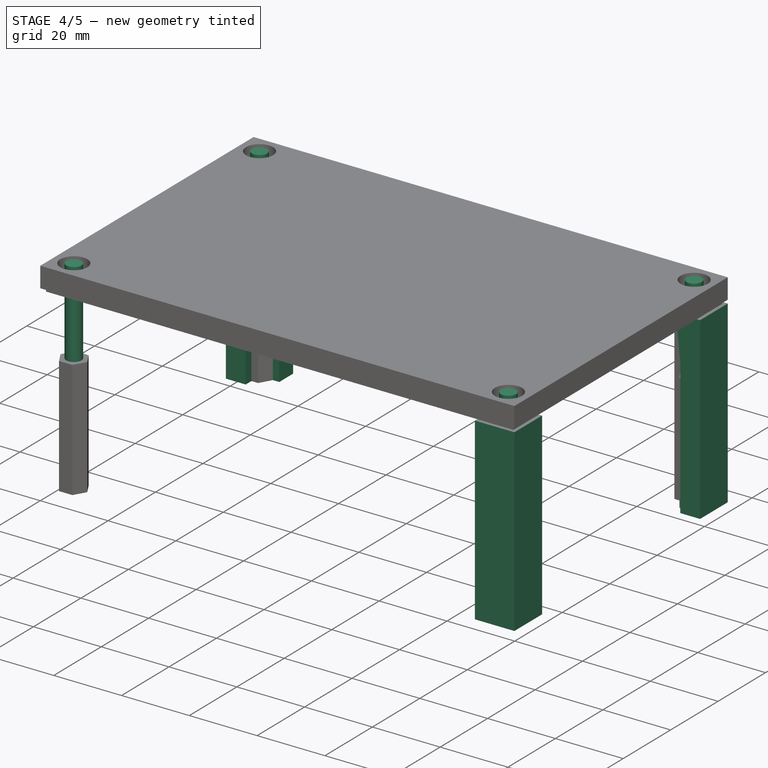
[diagram: stage 4 of 5 — iso view after this stage's code; geometry added in this stage tinted green]
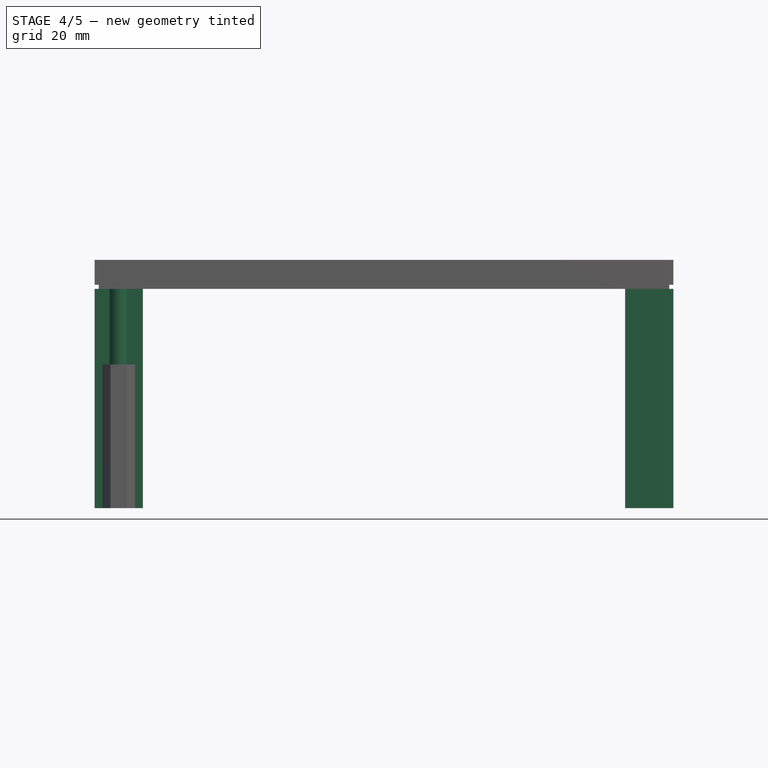
[diagram: stage 4 of 5 — front view after this stage's code; geometry added in this stage tinted green]
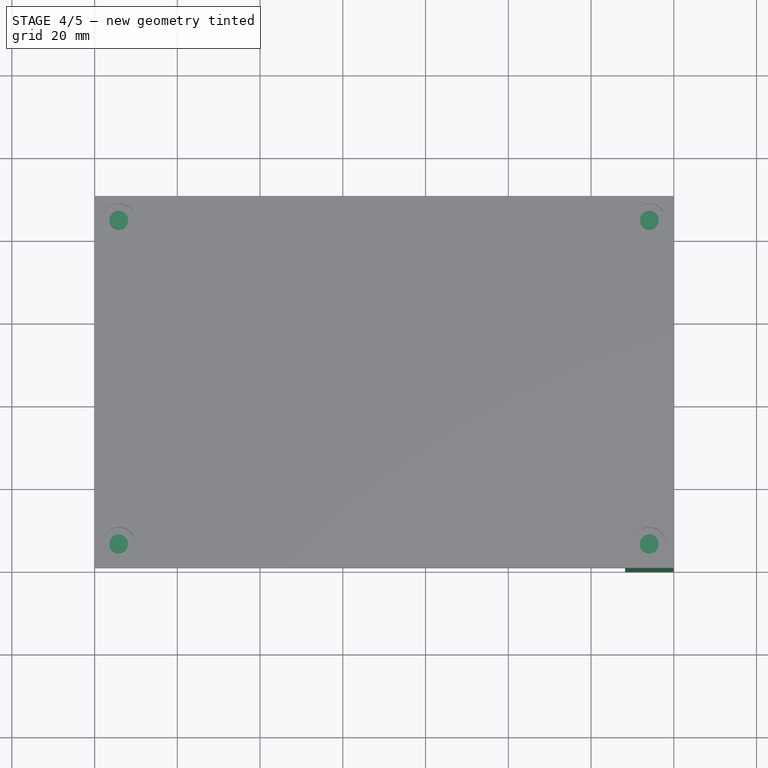
[diagram: stage 4 of 5 — top view after this stage's code; geometry added in this stage tinted green]
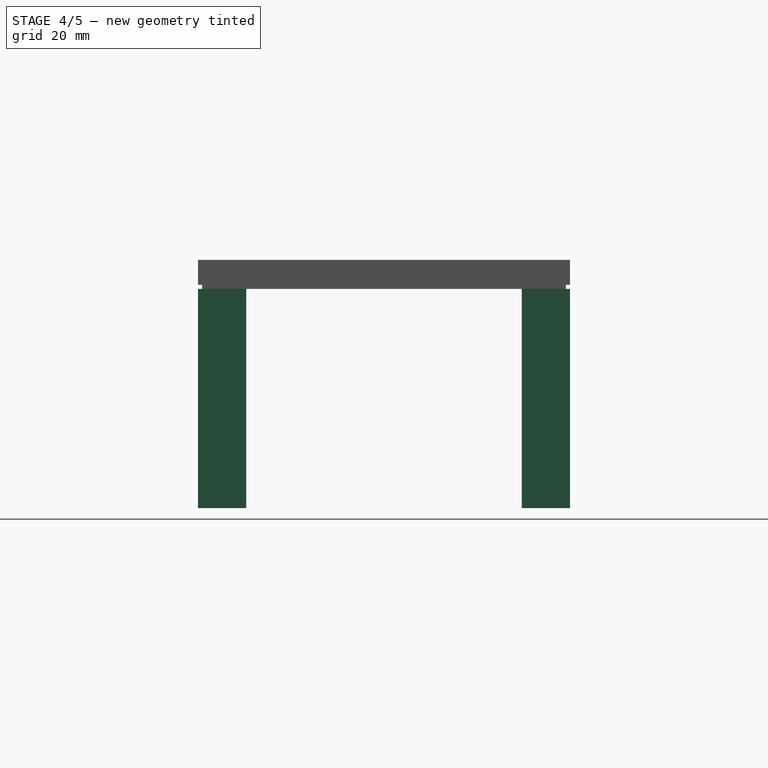
[diagram: stage 4 of 5 — right view after this stage's code; geometry added in this stage tinted green]
FEATURE [Part::Cylinder] Cylinder004
  Angle = 360
  AttacherType = Attacher::AttachEngine3D
  FirstAngle = 0
  Height = 60
  Placement = pos=(5.83,5.83,0) rot=(0,0,1;0rad)
  Radius = 2.25
  SecondAngle = 0
  expr: .Placement.Base.x = <<GenericScrewedUtilityBox>>.wall_width + <<GenericScrewedUtilityBox>>.m4_od / 2
  expr: .Placement.Base.y = <<GenericScrewedUtilityBox>>.wall_width + <<GenericScrewedUtilityBox>>.m4_od / 2
  expr: Height = <<GenericScrewedUtilityBox>>.outer_height
  expr: Radius = <<GenericScrewedUtilityBox>>.m4_throughhole / 2
FEATURE [Part::Cylinder] Cylinder005
  Angle = 360
  AttacherType = Attacher::AttachEngine3D
  FirstAngle = 0
  Height = 60
  Placement = pos=(134.075,5.83,0) rot=(0,0,1;0rad)
  Radius = 2.25
  SecondAngle = 0
  expr: .Placement.Base.x = <<GenericScrewedUtilityBox>>.outer_width - <<GenericScrewedUtilityBox>>.wall_width - <<GenericScrewedUtilityBox>>.m4_od / 2
  expr: .Placement.Base.y = <<GenericScrewedUtilityBox>>.wall_width + <<GenericScrewedUtilityBox>>.m4_od / 2
  expr: Height = <<GenericScrewedUtilityBox>>.outer_height
  expr: Radius = <<GenericScrewedUtilityBox>>.m4_throughhole / 2
FEATURE [Part::Cylinder] Cylinder006
  Angle = 360
  AttacherType = Attacher::AttachEngine3D
  FirstAngle = 0
  Height = 60
  Placement = pos=(5.83,84.0749,0) rot=(0,0,1;0rad)
  Radius = 2.25
  SecondAngle = 0
  expr: .Placement.Base.x = <<GenericScrewedUtilityBox>>.wall_width + <<GenericScrewedUtilityBox>>.m4_od / 2
  expr: .Placement.Base.y = <<GenericScrewedUtilityBox>>.outer_length - <<GenericScrewedUtilityBox>>.wall_width - <<GenericScrewedUtilityBox>>.m4_od / 2
  expr: Height = <<GenericScrewedUtilityBox>>.outer_height
  expr: Radius = <<GenericScrewedUtilityBox>>.m4_throughhole / 2
FEATURE [Part::Cylinder] Cylinder007
  Angle = 360
  AttacherType = Attacher::AttachEngine3D
  FirstAngle = 0
  Height = 60
  Placement = pos=(134.075,84.0749,0) rot=(0,0,1;0rad)
  Radius = 2.25
  SecondAngle = 0
  expr: .Placement.Base.x = <<GenericScrewedUtilityBox>>.outer_width - <<GenericScrewedUtilityBox>>.wall_width - <<GenericScrewedUtilityBox>>.m4_od / 2
  expr: .Placement.Base.y = <<GenericScrewedUtilityBox>>.outer_length - <<GenericScrewedUtilityBox>>.wall_width - <<GenericScrewedUtilityBox>>.m4_od / 2
  expr: Height = <<GenericScrewedUtilityBox>>.outer_height
  expr: Radius = <<GenericScrewedUtilityBox>>.m4_throughhole / 2
FEATURE [Part::MultiFuse] Fusion  label="M4Through001"
  Shapes = -> [Cylinder007,Cylinder004,Cylinder005,Cylinder006]
FEATURE [Part::Box] Box005  label="Cube002"
  AttacherType = Attacher::AttachEngine3D
  Height = 53
  Length = 11.66
  Width = 11.66
  expr: Height = <<GenericScrewedUtilityBox>>.lower_split_height - <<GenericScrewedUtilityBox>>.overlap_region
  expr: Length = <<GenericScrewedUtilityBox>>.m4_od + 2 * <<GenericScrewedUtilityBox>>.wall_width
  expr: Width = <<GenericScrewedUtilityBox>>.m4_od + 2 * <<GenericScrewedUtilityBox>>.wall_width
FEATURE [Part::Box] Box006  label="Cube003"
  AttacherType = Attacher::AttachEngine3D
  Height = 53
  Length = 5.83
  Placement = pos=(5.83,5.83,0) rot=(0,0,1;0rad)
  Width = 5.83
  expr: .Placement.Base.x = (<<GenericScrewedUtilityBox>>.m4_od + 2 * <<GenericScrewedUtilityBox>>.wall_width) / 2
  expr: .Placement.Base.y = (<<GenericScrewedUtilityBox>>.m4_od + 2 * <<GenericScrewedUtilityBox>>.wall_width) / 2
  expr: Height = <<GenericScrewedUtilityBox>>.lower_split_height - <<GenericScrewedUtilityBox>>.overlap_region
  expr: Length = (<<GenericScrewedUtilityBox>>.m4_od + 2 * <<GenericScrewedUtilityBox>>.wall_width) / 2
  expr: Width = (<<GenericScrewedUtilityBox>>.m4_od + 2 * <<GenericScrewedUtilityBox>>.wall_width) / 2
FEATURE [Part::Cut] Cut002
  Base = -> Box005
  Placement = pos=(139.905,0,0) rot=(0,0,1;1.5708rad)
  Tool = -> Box006
  expr: .Placement.Base.x = <<GenericScrewedUtilityBox>>.outer_width
FEATURE [Part::Box] Box007  label="Cube004"
  AttacherType = Attacher::AttachEngine3D
  Height = 53
  Length = 11.66
  Width = 11.66
  expr: Height = <<GenericScrewedUtilityBox>>.lower_split_height - <<GenericScrewedUtilityBox>>.overlap_region
  expr: Length = <<GenericScrewedUtilityBox>>.m4_od + 2 * <<GenericScrewedUtilityBox>>.wall_width
  expr: Width = <<GenericScrewedUtilityBox>>.m4_od + 2 * <<GenericScrewedUtilityBox>>.wall_width
FEATURE [Part::Box] Box008  label="Cube005"
  AttacherType = Attacher::AttachEngine3D
  Height = 53
  Length = 5.83
  Placement = pos=(5.83,5.83,0) rot=(0,0,1;0rad)
  Width = 5.83
  expr: .Placement.Base.x = (<<GenericScrewedUtilityBox>>.m4_od + 2 * <<GenericScrewedUtilityBox>>.wall_width) / 2
  expr: .Placement.Base.y = (<<GenericScrewedUtilityBox>>.m4_od + 2 * <<GenericScrewedUtilityBox>>.wall_width) / 2
  expr: Height = <<GenericScrewedUtilityBox>>.lower_split_height - <<GenericScrewedUtilityBox>>.overlap_region
  expr: Length = (<<GenericScrewedUtilityBox>>.m4_od + 2 * <<GenericScrewedUtilityBox>>.wall_width) / 2
  expr: Width = (<<GenericScrewedUtilityBox>>.m4_od + 2 * <<GenericScrewedUtilityBox>>.wall_width) / 2
FEATURE [Part::Cut] Cut003
  Base = -> Box007
  Placement = pos=(139.905,89.9049,0) rot=(0,0,1;3.14159rad)
  Tool = -> Box008
  expr: .Placement.Base.x = <<GenericScrewedUtilityBox>>.outer_width
  expr: .Placement.Base.y = <<GenericScrewedUtilityBox>>.outer_length
FEATURE [Part::Box] Box009  label="Cube006"
  AttacherType = Attacher::AttachEngine3D
  Height = 53
  Length = 11.66
  Width = 11.66
  expr: Height = <<GenericScrewedUtilityBox>>.lower_split_height - <<GenericScrewedUtilityBox>>.overlap_region
  expr: Length = <<GenericScrewedUtilityBox>>.m4_od + 2 * <<GenericScrewedUtilityBox>>.wall_width
  expr: Width = <<GenericScrewedUtilityBox>>.m4_od + 2 * <<GenericScrewedUtilityBox>>.wall_width
FEATURE [Part::Box] Box010  label="Cube007"
  AttacherType = Attacher::AttachEngine3D
  Height = 53
  Length = 5.83
  Placement = pos=(5.83,5.83,0) rot=(0,0,1;0rad)
  Width = 5.83
  expr: .Placement.Base.x = (<<GenericScrewedUtilityBox>>.m4_od + 2 * <<GenericScrewedUtilityBox>>.wall_width) / 2
  expr: .Placement.Base.y = (<<GenericScrewedUtilityBox>>.m4_od + 2 * <<GenericScrewedUtilityBox>>.wall_width) / 2
  expr: Height = <<GenericScrewedUtilityBox>>.lower_split_height - <<GenericScrewedUtilityBox>>.overlap_region
  expr: Length = (<<GenericScrewedUtilityBox>>.m4_od + 2 * <<GenericScrewedUtilityBox>>.wall_width) / 2
  expr: Width = (<<GenericScrewedUtilityBox>>.m4_od + 2 * <<GenericScrewedUtilityBox>>.wall_width) / 2
FEATURE [Part::Cut] Cut004
  Base = -> Box009
  Placement = pos=(0,89.9049,0) rot=(0,0,1;4.71239rad)
  Tool = -> Box010
  expr: .Placement.Base.y = <<GenericScrewedUtilityBox>>.outer_length
FEATURE [Part::MultiFuse] Fusion004
  Shapes = -> [Fusion002,Fusion]
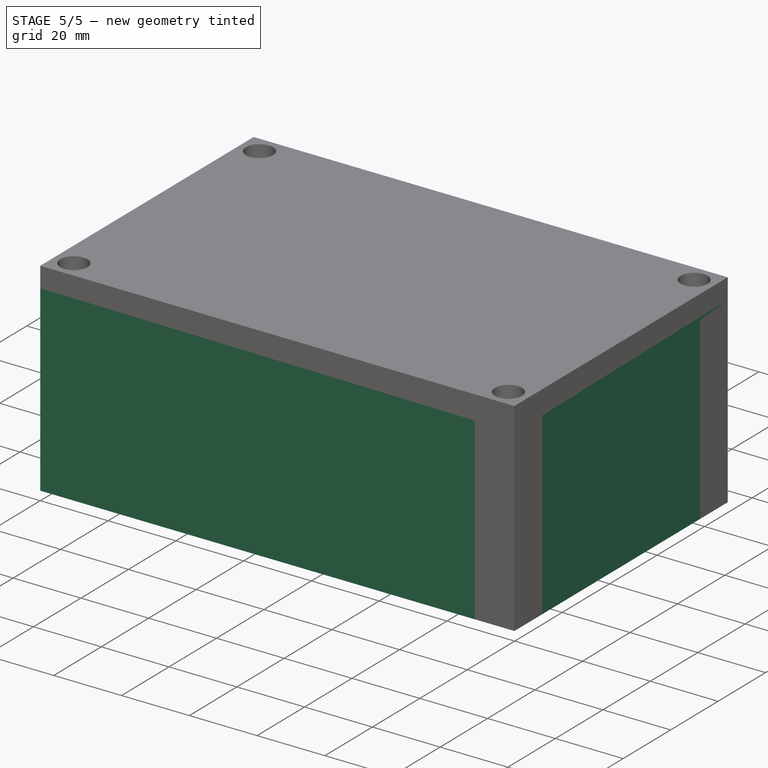
[diagram: stage 5 of 5 — iso view after this stage's code; geometry added in this stage tinted green]
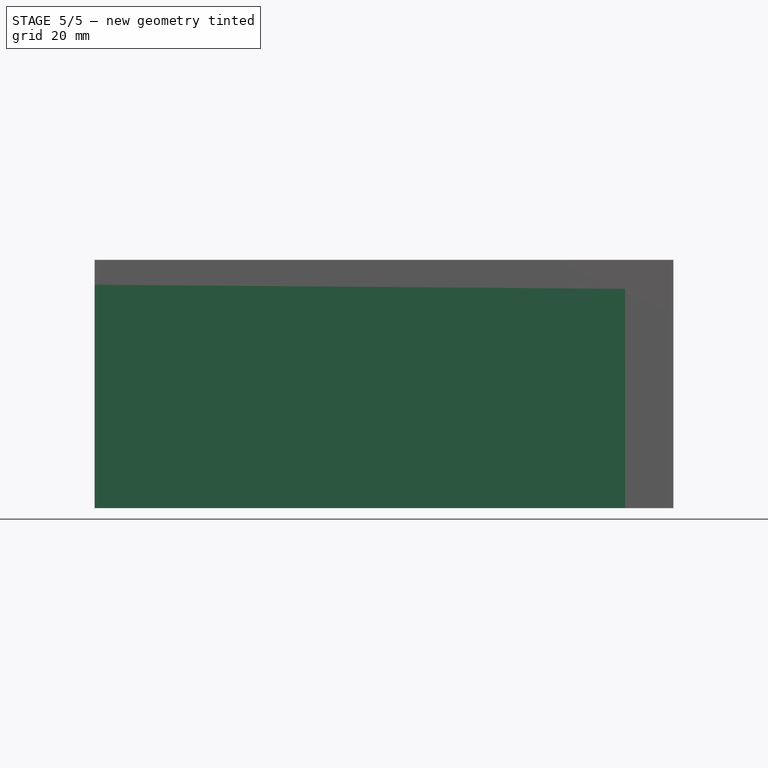
[diagram: stage 5 of 5 — front view after this stage's code; geometry added in this stage tinted green]
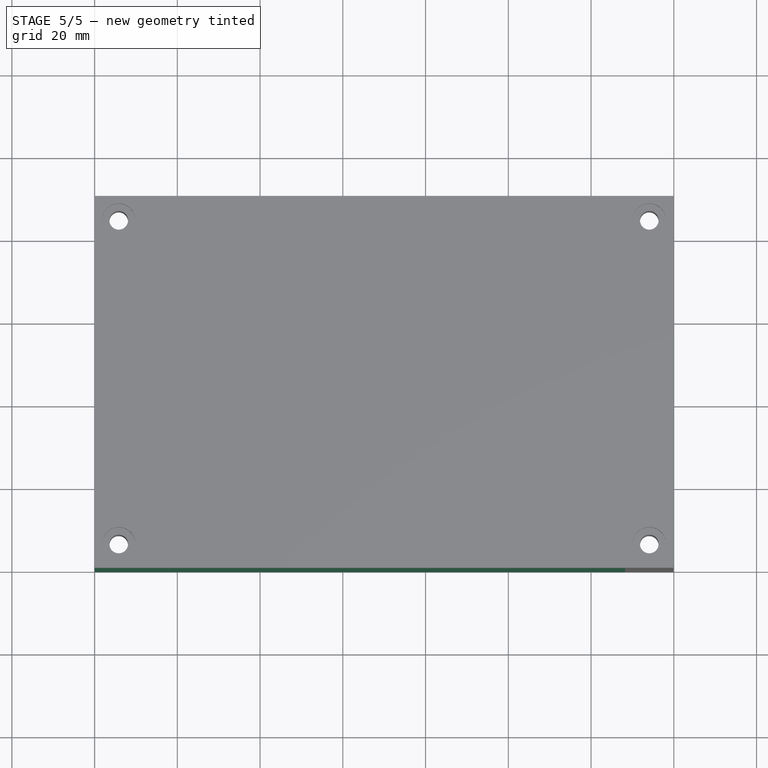
[diagram: stage 5 of 5 — top view after this stage's code; geometry added in this stage tinted green]
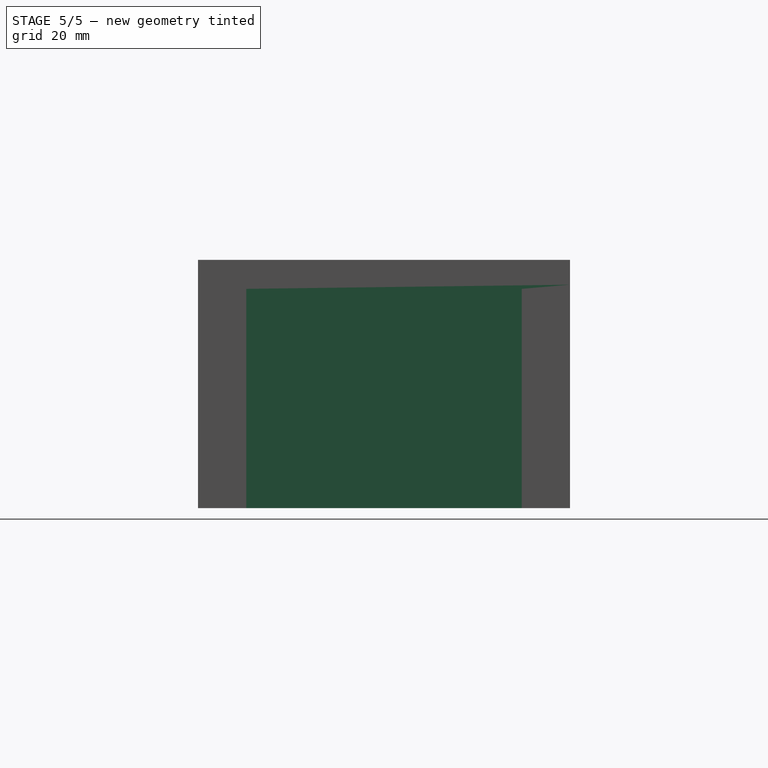
[diagram: stage 5 of 5 — right view after this stage's code; geometry added in this stage tinted green]
FEATURE [Spreadsheet::Sheet] Spreadsheet  label="GenericScrewedUtilityBox"
  cells = E1='Constants, do not change; I1='Computed properties; A2='Wall width; B2(wall_width)=2; C2='Thickness of walls and top/bottom as well as encasing of parts; E2='M4 nut height; F2(m4_nut_height)=4; G2='3.2 by spec; I2='Outer width; J2(outer_width)==u_width + 2 * delta_wl; A3='Useable Width; B3(u_width)=120; C3='Useable area inside the box; E3='M4 nut OD; F3(m4_od)=7.66; G3='7.66 by spec; I3='Outer Length; J3(outer_length)==u_l + 2 * delta_wl; A4='Useable Length; B4(u_l)=70; C4='Useable area inside the box; E4='Delta w/l; F4(delta_wl)==wall_width + 1 / sqrt(2) * (m4_od / 2 + wall_width) + m4_od / 2; I4='Outer Height; J4(outer_height)==2 * wall_width + u_h; A5='Useable Height; B5(u_h)=56; C5='Useable height inside the box; E5='M4 through hole diameter; F5(m4_throughhole)=4.5; G5='4.5 by norm; I5='Upper split height; J5(upper_split_height)==m4_nut_height + wall_width; A6='M4 Screw Length; B6(screwlen)=25; C6='Length of threading of M4 screw; E6='M4 Head Height; F6(m4_head_height)=4.3; G6='4 by norm; I6='Lower split; J6(lower_split_height)==outer_height - upper_split_height; A7='Height overlap region; B7(overlap_region)=1; C7='Overlapping region between top and bottom part (for alignment); E7='M4 Head Diameter; F7(m4_head_dia)=8; G7='7 by norm; A8='Matching tolerance; B8(match_tolerance)=0.3; C8='Matching tolerance between upper and lower part
FEATURE [Part::Box] Box  label="OuterArea01"
  AttacherType = Attacher::AttachEngine3D
  Height = 54
  Length = 139.905
  Width = 89.9049
  expr: Height = <<GenericScrewedUtilityBox>>.lower_split_height
  expr: Length = <<GenericScrewedUtilityBox>>.outer_width
  expr: Width = <<GenericScrewedUtilityBox>>.outer_length
FEATURE [Part::Box] Box001  label="InnerArea01"
  AttacherType = Attacher::AttachEngine3D
  Height = 52
  Length = 135.905
  Placement = pos=(2,2,2) rot=(0,0,1;0rad)
  Width = 85.9049
  expr: .Placement.Base.x = <<GenericScrewedUtilityBox>>.wall_width
  expr: .Placement.Base.y = <<GenericScrewedUtilityBox>>.wall_width
  expr: .Placement.Base.z = <<GenericScrewedUtilityBox>>.wall_width
  expr: Height = <<GenericScrewedUtilityBox>>.lower_split_height - <<GenericScrewedUtilityBox>>.wall_width
  expr: Length = <<GenericScrewedUtilityBox>>.outer_width - 2 * <<GenericScrewedUtilityBox>>.wall_width
  expr: Width = <<GenericScrewedUtilityBox>>.outer_length - 2 * <<GenericScrewedUtilityBox>>.wall_width
FEATURE [Part::Cut] Cut
  Base = -> Box
  Tool = -> Box001
FEATURE [Part::Box] Box002  label="OverlapRegion01"
  AttacherType = Attacher::AttachEngine3D
  Height = 1
  Length = 137.905
  Placement = pos=(1,1,53) rot=(0,0,1;0rad)
  Width = 87.9049
  expr: .Placement.Base.x = <<GenericScrewedUtilityBox>>.wall_width / 2
  expr: .Placement.Base.y = <<GenericScrewedUtilityBox>>.wall_width / 2
  expr: .Placement.Base.z = <<GenericScrewedUtilityBox>>.lower_split_height - <<GenericScrewedUtilityBox>>.overlap_region
  expr: Height = <<GenericScrewedUtilityBox>>.overlap_region
  expr: Length = <<GenericScrewedUtilityBox>>.outer_width - <<GenericScrewedUtilityBox>>.wall_width
  expr: Width = <<GenericScrewedUtilityBox>>.outer_length - <<GenericScrewedUtilityBox>>.wall_width
FEATURE [Part::Cylinder] Cylinder
  Angle = 360
  AttacherType = Attacher::AttachEngine3D
  FirstAngle = 0
  Height = 53
  Placement = pos=(5.83,5.83,0) rot=(0,0,1;0rad)
  Radius = 5.83
  SecondAngle = 0
  expr: .Placement.Base.x = <<GenericScrewedUtilityBox>>.wall_width + <<GenericScrewedUtilityBox>>.m4_od / 2
  expr: .Placement.Base.y = <<GenericScrewedUtilityBox>>.wall_width + <<GenericScrewedUtilityBox>>.m4_od / 2
  expr: Height = <<GenericScrewedUtilityBox>>.lower_split_height - <<GenericScrewedUtilityBox>>.overlap_region
  expr: Radius = <<GenericScrewedUtilityBox>>.m4_od / 2 + <<GenericScrewedUtilityBox>>.wall_width
FEATURE [Part::Cylinder] Cylinder001
  Angle = 360
  AttacherType = Attacher::AttachEngine3D
  FirstAngle = 0
  Height = 53
  Placement = pos=(134.075,5.83,0) rot=(0,0,1;0rad)
  Radius = 5.83
  SecondAngle = 0
  expr: .Placement.Base.x = <<GenericScrewedUtilityBox>>.outer_width - <<GenericScrewedUtilityBox>>.wall_width - <<GenericScrewedUtilityBox>>.m4_od / 2
  expr: .Placement.Base.y = <<GenericScrewedUtilityBox>>.wall_width + <<GenericScrewedUtilityBox>>.m4_od / 2
  expr: Height = <<GenericScrewedUtilityBox>>.lower_split_height - <<GenericScrewedUtilityBox>>.overlap_region
  expr: Radius = <<GenericScrewedUtilityBox>>.m4_od / 2 + <<GenericScrewedUtilityBox>>.wall_width
FEATURE [Part::Cylinder] Cylinder002
  Angle = 360
  AttacherType = Attacher::AttachEngine3D
  FirstAngle = 0
  Height = 53
  Placement = pos=(5.83,84.0749,0) rot=(0,0,1;0rad)
  Radius = 5.83
  SecondAngle = 0
  expr: .Placement.Base.x = <<GenericScrewedUtilityBox>>.wall_width + <<GenericScrewedUtilityBox>>.m4_od / 2
  expr: .Placement.Base.y = <<GenericScrewedUtilityBox>>.outer_length - <<GenericScrewedUtilityBox>>.wall_width - <<GenericScrewedUtilityBox>>.m4_od / 2
  expr: Height = <<GenericScrewedUtilityBox>>.lower_split_height - <<GenericScrewedUtilityBox>>.overlap_region
  expr: Radius = <<GenericScrewedUtilityBox>>.m4_od / 2 + <<GenericScrewedUtilityBox>>.wall_width
FEATURE [Part::Cylinder] Cylinder003
  Angle = 360
  AttacherType = Attacher::AttachEngine3D
  FirstAngle = 0
  Height = 53
  Placement = pos=(134.075,84.0749,0) rot=(0,0,1;0rad)
  Radius = 5.83
  SecondAngle = 0
  expr: .Placement.Base.x = <<GenericScrewedUtilityBox>>.outer_width - <<GenericScrewedUtilityBox>>.wall_width - <<GenericScrewedUtilityBox>>.m4_od / 2
  expr: .Placement.Base.y = <<GenericScrewedUtilityBox>>.outer_length - <<GenericScrewedUtilityBox>>.wall_width - <<GenericScrewedUtilityBox>>.m4_od / 2
  expr: Height = <<GenericScrewedUtilityBox>>.lower_split_height - <<GenericScrewedUtilityBox>>.overlap_region
  expr: Radius = <<GenericScrewedUtilityBox>>.m4_od / 2 + <<GenericScrewedUtilityBox>>.wall_width
FEATURE [Part::Box] Box003  label="Cube"
  AttacherType = Attacher::AttachEngine3D
  Height = 53
  Length = 11.66
  Width = 11.66
  expr: Height = <<GenericScrewedUtilityBox>>.lower_split_height - <<GenericScrewedUtilityBox>>.overlap_region
  expr: Length = <<GenericScrewedUtilityBox>>.m4_od + 2 * <<GenericScrewedUtilityBox>>.wall_width
  expr: Width = <<GenericScrewedUtilityBox>>.m4_od + 2 * <<GenericScrewedUtilityBox>>.wall_width
FEATURE [Part::Box] Box004  label="Cube001"
  AttacherType = Attacher::AttachEngine3D
  Height = 53
  Length = 5.83
  Placement = pos=(5.83,5.83,0) rot=(0,0,1;0rad)
  Width = 5.83
  expr: .Placement.Base.x = (<<GenericScrewedUtilityBox>>.m4_od + 2 * <<GenericScrewedUtilityBox>>.wall_width) / 2
  expr: .Placement.Base.y = (<<GenericScrewedUtilityBox>>.m4_od + 2 * <<GenericScrewedUtilityBox>>.wall_width) / 2
  expr: Height = <<GenericScrewedUtilityBox>>.lower_split_height - <<GenericScrewedUtilityBox>>.overlap_region
  expr: Length = (<<GenericScrewedUtilityBox>>.m4_od + 2 * <<GenericScrewedUtilityBox>>.wall_width) / 2
  expr: Width = (<<GenericScrewedUtilityBox>>.m4_od + 2 * <<GenericScrewedUtilityBox>>.wall_width) / 2
FEATURE [Part::Cut] Cut001
  Base = -> Box003
  Tool = -> Box004
FEATURE [Part::MultiFuse] Fusion001  label="ScrewHousing001"
  Shapes = -> [Cut004,Cut001,Cut002,Cut003,Cylinder003,Cylinder002,Cylinder001,Cylinder]
FEATURE [Part::MultiFuse] Fusion003
  Shapes = -> [Cut,Fusion001]
FEATURE [Part::Cut] Cut005
  Base = -> Fusion003
  Tool = -> Fusion004
FEATURE [Part::Cut] Cut006  label="LowerPart"
  Base = -> Cut005
  Tool = -> Box002
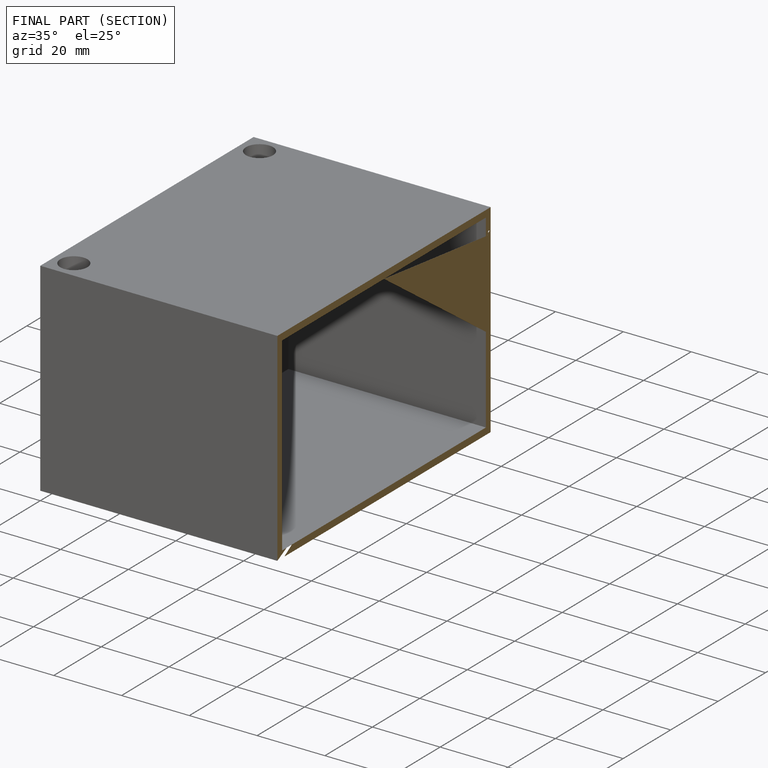
[diagram: finished part — half-section view (interior)]
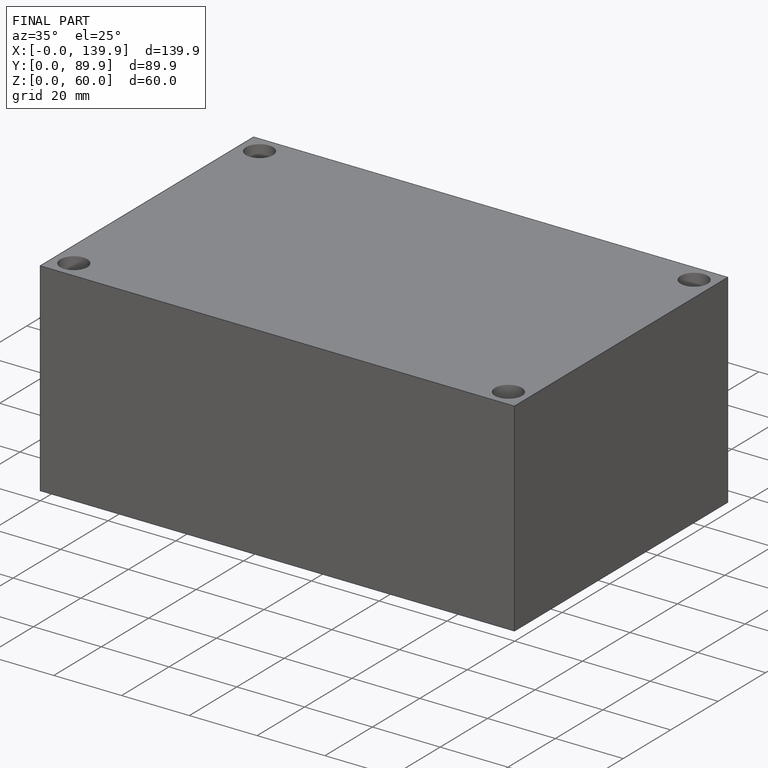
[diagram: finished part — iso view with bounding-box wireframe]
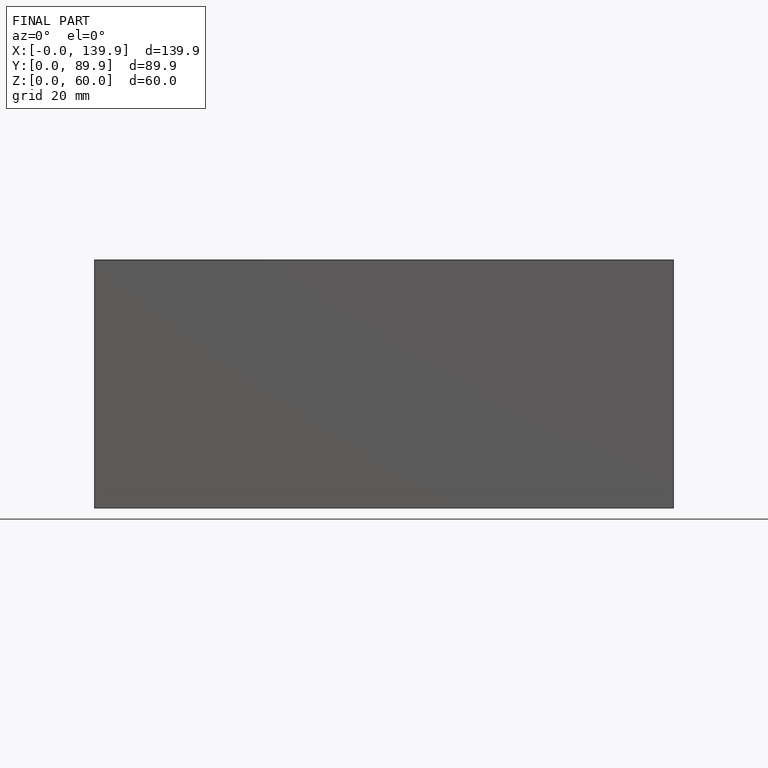
[diagram: finished part — front view with bounding-box wireframe]
